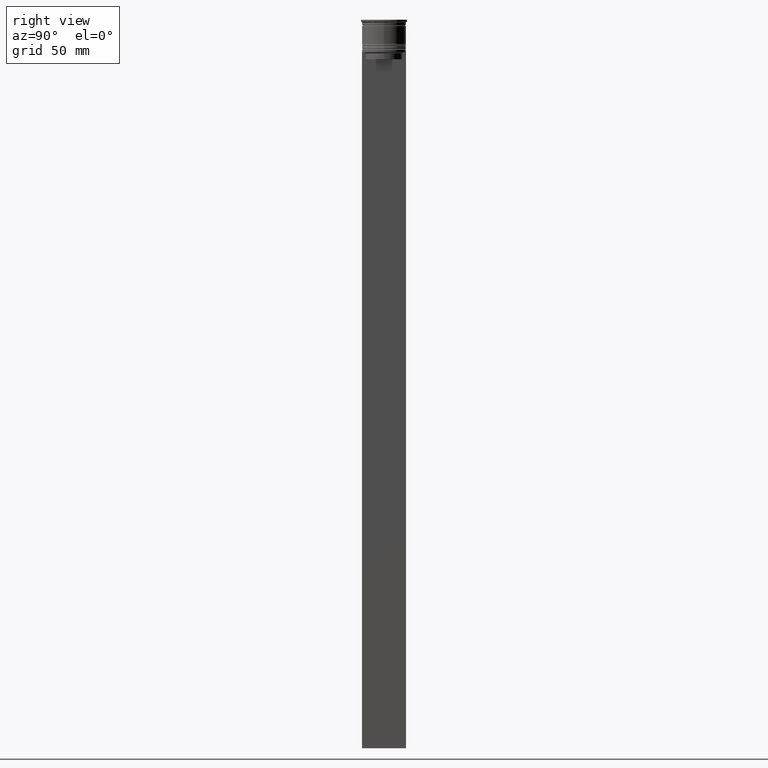
[diagram: clean part render]
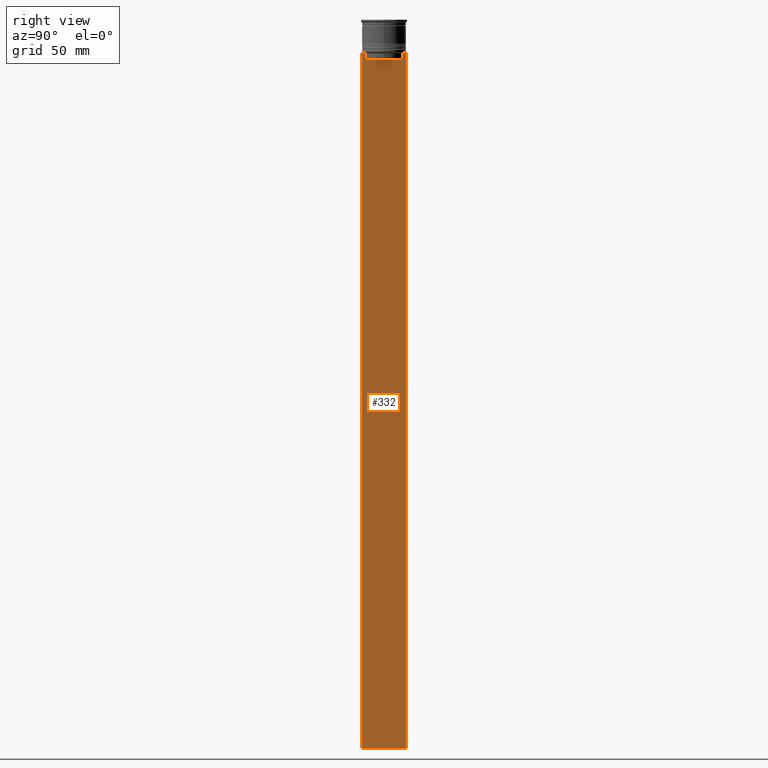
[diagram: same view with one face highlighted and labeled with its STEP entity id]
A machine part, right view. The second image highlights one B-rep face of the part: STEP entity #332.
In plain terms, the highlighted planar face has unit normal (-1, 0, 0).
Its self-contained STEP definition (entity closure, byte-faithful):
#30 = EDGE_CURVE ( 'NONE', #919, #1841, #333, .T. ) ;
#85 = CARTESIAN_POINT ( 'NONE',  ( 0.5000000000000000000, -9.500000000000001776, -14.00000000000000178 ) ) ;
#86 = ORIENTED_EDGE ( 'NONE', *, *, #260, .F. ) ;
#87 = EDGE_CURVE ( 'NONE', #976, #1883, #391, .T. ) ;
#90 = VECTOR ( 'NONE', #1314, 1000.000000000000000 ) ;
#100 = VECTOR ( 'NONE', #676, 1000.000000000000000 ) ;
#101 = LINE ( 'NONE', #1750, #1302 ) ;
#105 = ORIENTED_EDGE ( 'NONE', *, *, #609, .T. ) ;
#159 = EDGE_LOOP ( 'NONE', ( #2631, #1025, #1009, #205, #1596, #424, #1951, #1507, #105, #1856, #86, #1486 ) ) ;
#205 = ORIENTED_EDGE ( 'NONE', *, *, #2495, .T. ) ;
#251 = LINE ( 'NONE', #1680, #671 ) ;
#260 = EDGE_CURVE ( 'NONE', #976, #2358, #2098, .T. ) ;
#300 = DIRECTION ( 'NONE',  ( 0.000000000000000000, -1.000000000000000000, 0.000000000000000000 ) ) ;
#303 = CARTESIAN_POINT ( 'NONE',  ( 0.5000000000000000000, -9.500000000000001776, 5.026297590440445440 ) ) ;
#332 = ADVANCED_FACE ( 'NONE', ( #1888 ), #2346, .F. ) ;
#333 = B_SPLINE_CURVE_WITH_KNOTS ( 'NONE', 3,
 ( #763, #1583, #2231, #1042 ),
 .UNSPECIFIED., .F., .F.,
 ( 4, 4 ),
 ( 0.03673372442973153046, 0.03744389749832059688 ),
 .UNSPECIFIED. ) ;
#389 = CARTESIAN_POINT ( 'NONE',  ( 0.5000000000000000000, -9.500000000000001776, -14.00000000000000178 ) ) ;
#391 = LINE ( 'NONE', #1227, #1781 ) ;
#424 = ORIENTED_EDGE ( 'NONE', *, *, #30, .T. ) ;
#431 = DIRECTION ( 'NONE',  ( 0.000000000000000000, 0.000000000000000000, 1.000000000000000000 ) ) ;
#467 = VERTEX_POINT ( 'NONE', #2533 ) ;
#488 = CARTESIAN_POINT ( 'NONE',  ( 0.5000000000000000000, -9.500000000000001776, 5.026297590440445440 ) ) ;
#507 = CARTESIAN_POINT ( 'NONE',  ( 0.5000000000000000000, -9.500000000000001776, -14.00000000000000178 ) ) ;
#517 = DIRECTION ( 'NONE',  ( 0.000000000000000000, 1.000000000000000000, 0.000000000000000000 ) ) ;
#609 = EDGE_CURVE ( 'NONE', #1911, #1576, #2158, .T. ) ;
#623 = DIRECTION ( 'NONE',  ( 0.000000000000000000, -1.000000000000000000, 0.000000000000000000 ) ) ;
#663 = CARTESIAN_POINT ( 'NONE',  ( 0.5000000000000000000, -7.884161337770803080, -14.50000000000000000 ) ) ;
#671 = VECTOR ( 'NONE', #2104, 1000.000000000000000 ) ;
#676 = DIRECTION ( 'NONE',  ( 0.000000000000000000, 0.000000000000000000, -1.000000000000000000 ) ) ;
#717 = LINE ( 'NONE', #507, #2162 ) ;
#735 = LINE ( 'NONE', #1369, #2560 ) ;
#744 = EDGE_CURVE ( 'NONE', #1576, #2358, #735, .T. ) ;
#763 = CARTESIAN_POINT ( 'NONE',  ( 0.5000000000000000000, -7.884161337770803080, -14.50000000000000000 ) ) ;
#806 = VERTEX_POINT ( 'NONE', #1823 ) ;
#814 = LINE ( 'NONE', #389, #2090 ) ;
#824 = DIRECTION ( 'NONE',  ( -0.000000000000000000, -0.000000000000000000, 1.000000000000000000 ) ) ;
#833 = LINE ( 'NONE', #2510, #100 ) ;
#888 = EDGE_CURVE ( 'NONE', #1588, #971, #2309, .T. ) ;
#919 = VERTEX_POINT ( 'NONE', #663 ) ;
#933 = CARTESIAN_POINT ( 'NONE',  ( 0.5000000000000000000, -7.884161337770803080, -17.00000000000000000 ) ) ;
#971 = VERTEX_POINT ( 'NONE', #2365 ) ;
#976 = VERTEX_POINT ( 'NONE', #1835 ) ;
#1009 = ORIENTED_EDGE ( 'NONE', *, *, #1610, .T. ) ;
#1020 = CARTESIAN_POINT ( 'NONE',  ( 0.5000000000000000000, -9.500000000000001776, -14.00000000000000178 ) ) ;
#1025 = ORIENTED_EDGE ( 'NONE', *, *, #888, .T. ) ;
#1042 = CARTESIAN_POINT ( 'NONE',  ( 0.5000000000000000000, -8.385105843100605583, -14.00000000000000178 ) ) ;
#1059 = VERTEX_POINT ( 'NONE', #933 ) ;
#1089 = CARTESIAN_POINT ( 'NONE',  ( 0.5000000000000000000, 8.385105843100605583, -14.00000000000000178 ) ) ;
#1129 = DIRECTION ( 'NONE',  ( 0.000000000000000000, 0.000000000000000000, -1.000000000000000000 ) ) ;
#1227 = CARTESIAN_POINT ( 'NONE',  ( 0.5000000000000000000, -9.500000000000001776, -14.00000000000000178 ) ) ;
#1301 = LINE ( 'NONE', #85, #1649 ) ;
#1302 = VECTOR ( 'NONE', #824, 1000.000000000000000 ) ;
#1310 = DIRECTION ( 'NONE',  ( -1.000000000000000000, 0.000000000000000000, 0.000000000000000000 ) ) ;
#1314 = DIRECTION ( 'NONE',  ( 0.000000000000000000, 0.000000000000000000, -1.000000000000000000 ) ) ;
#1315 = DIRECTION ( 'NONE',  ( 0.000000000000000000, -1.000000000000000000, 0.000000000000000000 ) ) ;
#1369 = CARTESIAN_POINT ( 'NONE',  ( 0.5000000000000000000, -9.500000000000001776, -314.0000000000000000 ) ) ;
#1418 = CARTESIAN_POINT ( 'NONE',  ( 0.5000000000000000000, 8.051152811434374001, -14.33334332653219079 ) ) ;
#1419 = DIRECTION ( 'NONE',  ( 0.000000000000000000, -1.000000000000000000, 0.000000000000000000 ) ) ;
#1486 = ORIENTED_EDGE ( 'NONE', *, *, #87, .T. ) ;
#1507 = ORIENTED_EDGE ( 'NONE', *, *, #2022, .T. ) ;
#1576 = VERTEX_POINT ( 'NONE', #1899 ) ;
#1583 = CARTESIAN_POINT ( 'NONE',  ( 0.5000000000000000000, -8.051152795888546265, -14.33334334204685057 ) ) ;
#1588 = VERTEX_POINT ( 'NONE', #1089 ) ;
#1596 = ORIENTED_EDGE ( 'NONE', *, *, #2258, .T. ) ;
#1604 = AXIS2_PLACEMENT_3D ( 'NONE', #488, #1310, #431 ) ;
#1610 = EDGE_CURVE ( 'NONE', #971, #467, #833, .T. ) ;
#1649 = VECTOR ( 'NONE', #1315, 1000.000000000000000 ) ;
#1670 = CARTESIAN_POINT ( 'NONE',  ( 0.5000000000000000000, 8.218133718559618828, -14.16667606394327983 ) ) ;
#1680 = CARTESIAN_POINT ( 'NONE',  ( 0.5000000000000000000, 7.899999999999994138, -17.00000000000000000 ) ) ;
#1708 = EDGE_CURVE ( 'NONE', #1883, #1588, #717, .T. ) ;
#1734 = VECTOR ( 'NONE', #1129, 1000.000000000000000 ) ;
#1750 = CARTESIAN_POINT ( 'NONE',  ( 0.5000000000000000000, -7.884161337770803080, 0.000000000000000000 ) ) ;
#1781 = VECTOR ( 'NONE', #1419, 1000.000000000000000 ) ;
#1823 = CARTESIAN_POINT ( 'NONE',  ( 0.5000000000000000000, -9.386692708297204035, -14.00000000000000178 ) ) ;
#1835 = CARTESIAN_POINT ( 'NONE',  ( 0.5000000000000000000, 9.499999999999998224, -14.00000000000000178 ) ) ;
#1841 = VERTEX_POINT ( 'NONE', #2572 ) ;
#1856 = ORIENTED_EDGE ( 'NONE', *, *, #744, .T. ) ;
#1883 = VERTEX_POINT ( 'NONE', #2647 ) ;
#1888 = FACE_OUTER_BOUND ( 'NONE', #159, .T. ) ;
#1899 = CARTESIAN_POINT ( 'NONE',  ( 0.5000000000000000000, -9.500000000000001776, -314.0000000000000000 ) ) ;
#1911 = VERTEX_POINT ( 'NONE', #1020 ) ;
#1951 = ORIENTED_EDGE ( 'NONE', *, *, #2325, .T. ) ;
#2022 = EDGE_CURVE ( 'NONE', #806, #1911, #1301, .T. ) ;
#2069 = CARTESIAN_POINT ( 'NONE',  ( 0.5000000000000000000, 9.499999999999998224, -314.0000000000000000 ) ) ;
#2090 = VECTOR ( 'NONE', #623, 1000.000000000000000 ) ;
#2098 = LINE ( 'NONE', #2354, #90 ) ;
#2104 = DIRECTION ( 'NONE',  ( 0.000000000000000000, -1.000000000000000000, 0.000000000000000000 ) ) ;
#2158 = LINE ( 'NONE', #303, #1734 ) ;
#2162 = VECTOR ( 'NONE', #300, 1000.000000000000000 ) ;
#2231 = CARTESIAN_POINT ( 'NONE',  ( 0.5000000000000000000, -8.218133703942523738, -14.16667607853445787 ) ) ;
#2258 = EDGE_CURVE ( 'NONE', #1059, #919, #101, .T. ) ;
#2297 = CARTESIAN_POINT ( 'NONE',  ( 0.5000000000000000000, 7.884161337770803080, -14.50000000000000000 ) ) ;
#2309 = B_SPLINE_CURVE_WITH_KNOTS ( 'NONE', 3,
 ( #2493, #1670, #1418, #2297 ),
 .UNSPECIFIED., .F., .F.,
 ( 4, 4 ),
 ( 0.01426761478740281447, 0.01497538974438914448 ),
 .UNSPECIFIED. ) ;
#2325 = EDGE_CURVE ( 'NONE', #1841, #806, #814, .T. ) ;
#2346 = PLANE ( 'NONE',  #1604 ) ;
#2354 = CARTESIAN_POINT ( 'NONE',  ( 0.5000000000000000000, 9.499999999999998224, 5.026297590440445440 ) ) ;
#2358 = VERTEX_POINT ( 'NONE', #2069 ) ;
#2365 = CARTESIAN_POINT ( 'NONE',  ( 0.5000000000000000000, 7.884161337770803080, -14.50000000000000000 ) ) ;
#2493 = CARTESIAN_POINT ( 'NONE',  ( 0.5000000000000000000, 8.385105843100605583, -14.00000000000000178 ) ) ;
#2495 = EDGE_CURVE ( 'NONE', #467, #1059, #251, .T. ) ;
#2510 = CARTESIAN_POINT ( 'NONE',  ( 0.5000000000000000000, 7.884161337770803080, 0.000000000000000000 ) ) ;
#2533 = CARTESIAN_POINT ( 'NONE',  ( 0.5000000000000000000, 7.884161337770803080, -17.00000000000000000 ) ) ;
#2560 = VECTOR ( 'NONE', #517, 1000.000000000000000 ) ;
#2572 = CARTESIAN_POINT ( 'NONE',  ( 0.5000000000000000000, -8.385105843100605583, -14.00000000000000178 ) ) ;
#2631 = ORIENTED_EDGE ( 'NONE', *, *, #1708, .T. ) ;
#2647 = CARTESIAN_POINT ( 'NONE',  ( 0.5000000000000000000, 9.386692708297204035, -14.00000000000000178 ) ) ;